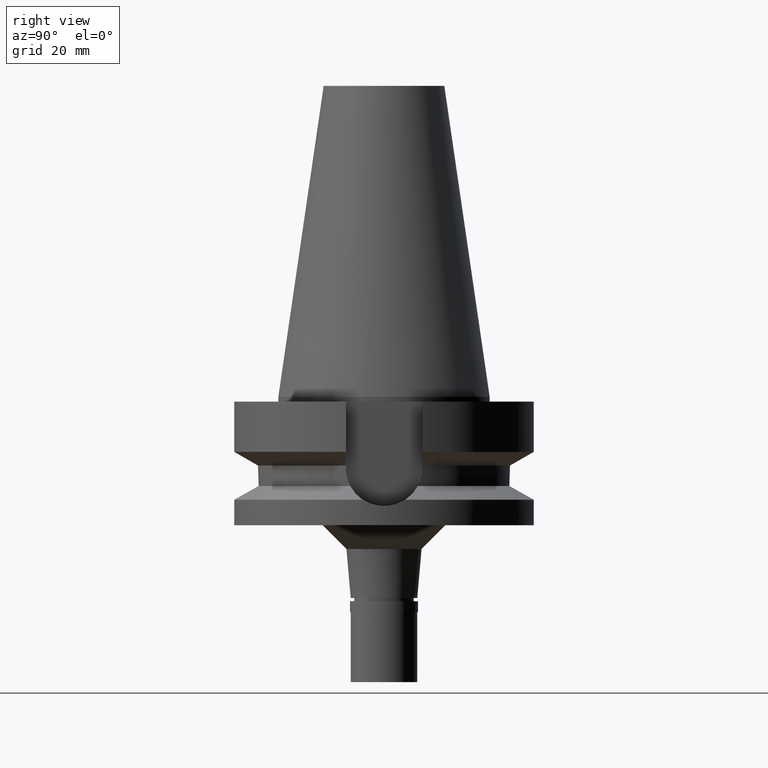
[diagram: clean part render]
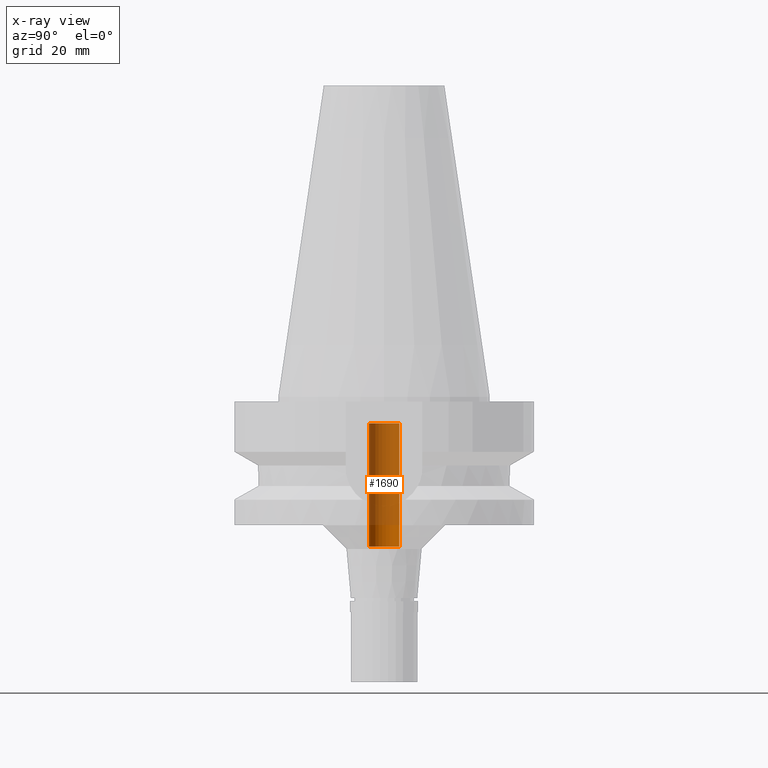
[diagram: x-ray — body ghosted, one internal face saturated and labeled with its STEP entity id]
A machine part, right view, then the same camera in x-ray: the body is ghosted and one INTERNAL B-rep face — a face not visible from any outside direction — is saturated and labeled: STEP entity #1690.
In plain terms, the highlighted cylindrical surface (edge-blend (fillet) strip) has radius 3.2 mm, axis along (0, 0, -1).
Its self-contained STEP definition (entity closure, byte-faithful):
#18 = EDGE_CURVE ( 'NONE', #2503, #1037, #171, .T. ) ;
#23 = CARTESIAN_POINT ( 'NONE',  ( 0.0000000000000000000, 3.200000000000000178, -31.50000000000000000 ) ) ;
#39 = AXIS2_PLACEMENT_3D ( 'NONE', #2856, #2380, #609 ) ;
#65 = CARTESIAN_POINT ( 'NONE',  ( 0.0000000000000000000, -3.200000000000000178, -5.599999999999999645 ) ) ;
#156 = CARTESIAN_POINT ( 'NONE',  ( 0.0000000000000000000, 3.200000000000000178, -31.50000000000000000 ) ) ;
#171 = LINE ( 'NONE', #156, #1815 ) ;
#194 = EDGE_CURVE ( 'NONE', #1643, #2316, #195, .T. ) ;
#195 = LINE ( 'NONE', #2517, #2859 ) ;
#206 = DIRECTION ( 'NONE',  ( 0.0000000000000000000, 0.0000000000000000000, 1.000000000000000000 ) ) ;
#233 = ORIENTED_EDGE ( 'NONE', *, *, #1212, .T. ) ;
#261 = FACE_OUTER_BOUND ( 'NONE', #1239, .T. ) ;
#268 = CIRCLE ( 'NONE', #1724, 3.200000000000000178 ) ;
#609 = DIRECTION ( 'NONE',  ( 0.0000000000000000000, -1.000000000000000000, 0.0000000000000000000 ) ) ;
#759 = CARTESIAN_POINT ( 'NONE',  ( 0.0000000000000000000, 3.200000000000000178, -5.599999999999999645 ) ) ;
#864 = CARTESIAN_POINT ( 'NONE',  ( 0.0000000000000000000, 2.099901866497999886E-14, -31.50000000000000000 ) ) ;
#970 = ORIENTED_EDGE ( 'NONE', *, *, #194, .F. ) ;
#1037 = VERTEX_POINT ( 'NONE', #759 ) ;
#1139 = DIRECTION ( 'NONE',  ( 0.0000000000000000000, -1.000000000000000000, 0.0000000000000000000 ) ) ;
#1212 = EDGE_CURVE ( 'NONE', #1037, #2316, #268, .T. ) ;
#1227 = CIRCLE ( 'NONE', #2205, 3.200000000000000178 ) ;
#1239 = EDGE_LOOP ( 'NONE', ( #233, #970, #2808, #1486 ) ) ;
#1262 = DIRECTION ( 'NONE',  ( 0.0000000000000000000, 1.000000000000000000, 0.0000000000000000000 ) ) ;
#1486 = ORIENTED_EDGE ( 'NONE', *, *, #18, .T. ) ;
#1504 = CARTESIAN_POINT ( 'NONE',  ( 0.0000000000000000000, 2.099901866497999886E-14, -5.599999999999999645 ) ) ;
#1511 = EDGE_CURVE ( 'NONE', #1643, #2503, #1227, .T. ) ;
#1643 = VERTEX_POINT ( 'NONE', #1649 ) ;
#1649 = CARTESIAN_POINT ( 'NONE',  ( 0.0000000000000000000, -3.200000000000000178, -31.50000000000000000 ) ) ;
#1690 = ADVANCED_FACE ( 'NONE', ( #261 ), #2554, .F. ) ;
#1724 = AXIS2_PLACEMENT_3D ( 'NONE', #1504, #1991, #1262 ) ;
#1815 = VECTOR ( 'NONE', #1979, 1000.000000000000000 ) ;
#1979 = DIRECTION ( 'NONE',  ( 0.0000000000000000000, 0.0000000000000000000, 1.000000000000000000 ) ) ;
#1991 = DIRECTION ( 'NONE',  ( 0.0000000000000000000, 0.0000000000000000000, 1.000000000000000000 ) ) ;
#2205 = AXIS2_PLACEMENT_3D ( 'NONE', #864, #2242, #1139 ) ;
#2242 = DIRECTION ( 'NONE',  ( 0.0000000000000000000, 0.0000000000000000000, -1.000000000000000000 ) ) ;
#2316 = VERTEX_POINT ( 'NONE', #65 ) ;
#2380 = DIRECTION ( 'NONE',  ( 0.0000000000000000000, 0.0000000000000000000, -1.000000000000000000 ) ) ;
#2503 = VERTEX_POINT ( 'NONE', #23 ) ;
#2517 = CARTESIAN_POINT ( 'NONE',  ( 0.0000000000000000000, -3.200000000000000178, -31.50000000000000000 ) ) ;
#2554 = CYLINDRICAL_SURFACE ( 'NONE', #39, 3.200000000000000178 ) ;
#2808 = ORIENTED_EDGE ( 'NONE', *, *, #1511, .T. ) ;
#2856 = CARTESIAN_POINT ( 'NONE',  ( 0.0000000000000000000, 2.099901866497999886E-14, 71.46999999999999886 ) ) ;
#2859 = VECTOR ( 'NONE', #206, 1000.000000000000000 ) ;